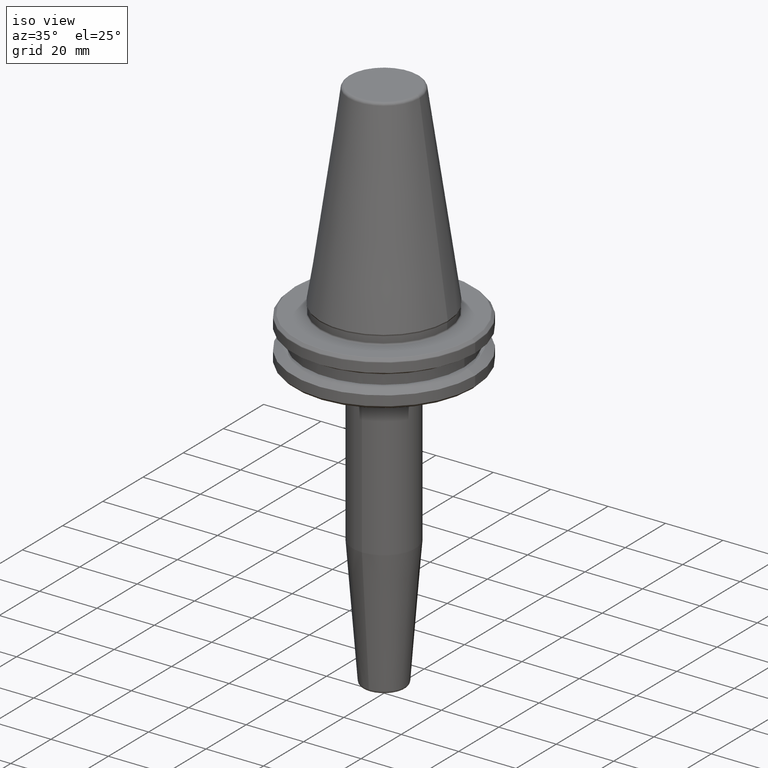
[diagram: clean part render]
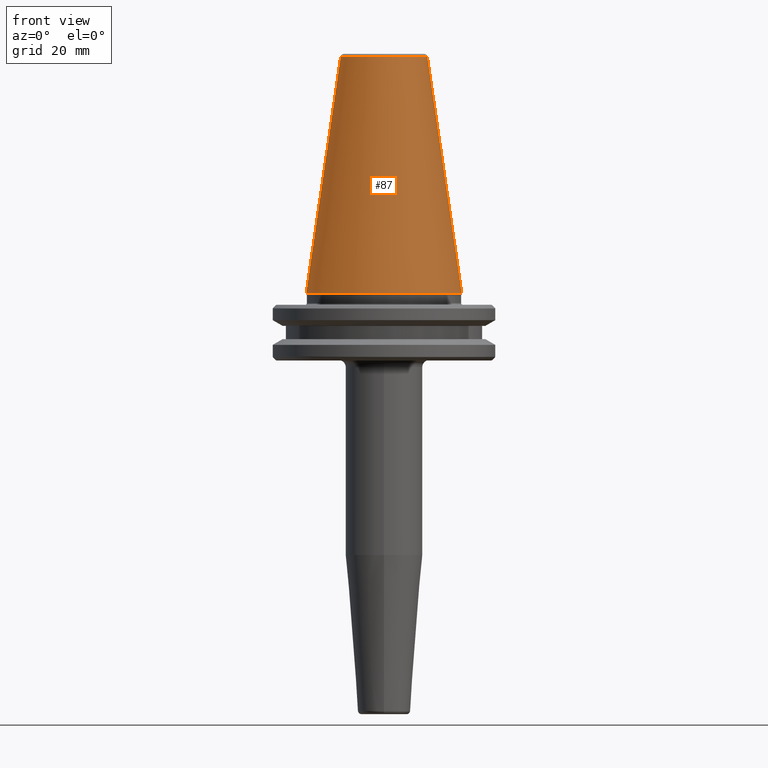
[diagram: tour spotlight — one face highlighted and labeled with its STEP entity id]
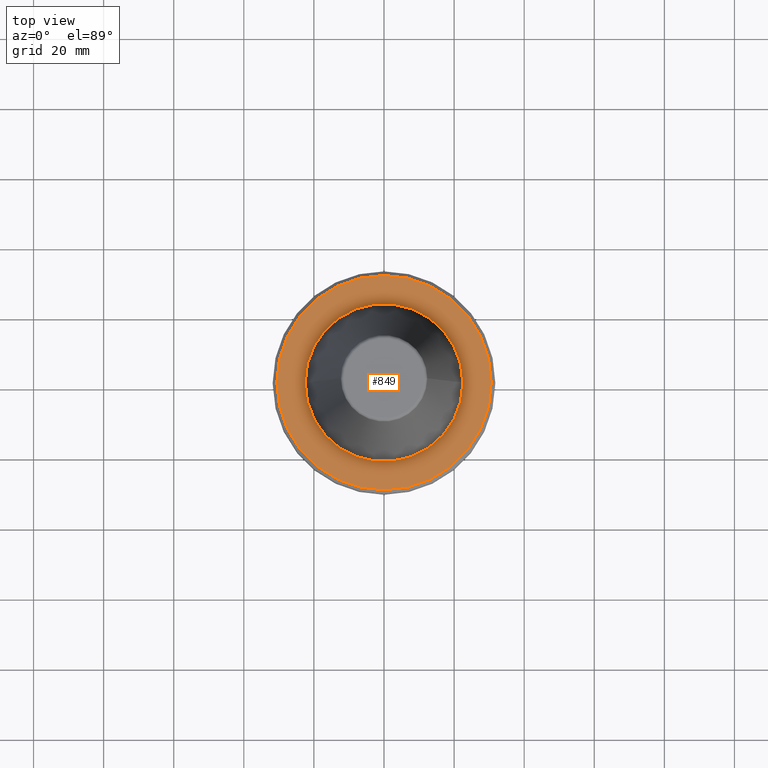
[diagram: tour spotlight — one face highlighted and labeled with its STEP entity id]
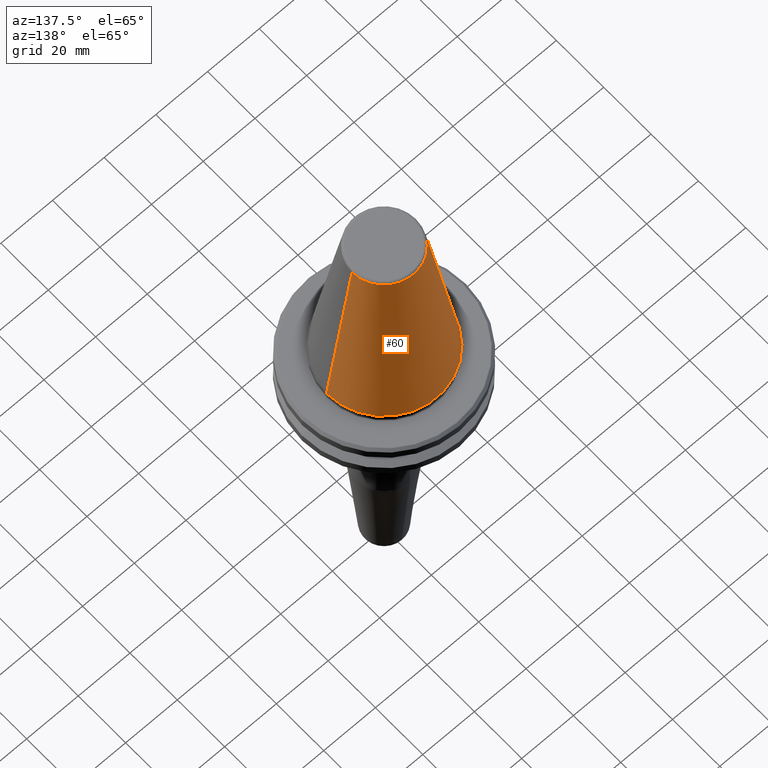
[diagram: tour spotlight — one face highlighted and labeled with its STEP entity id]
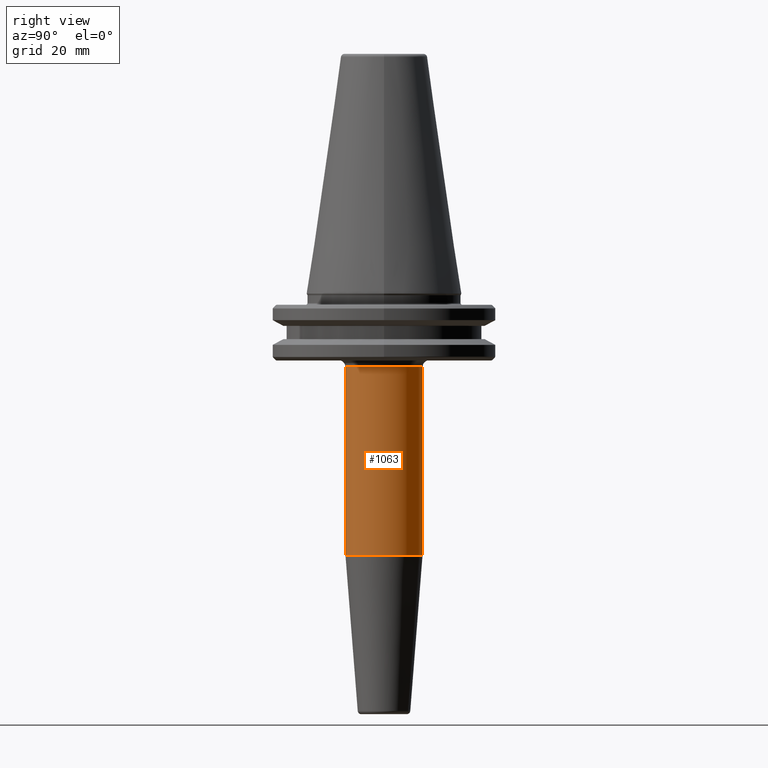
[diagram: tour spotlight — one face highlighted and labeled with its STEP entity id]
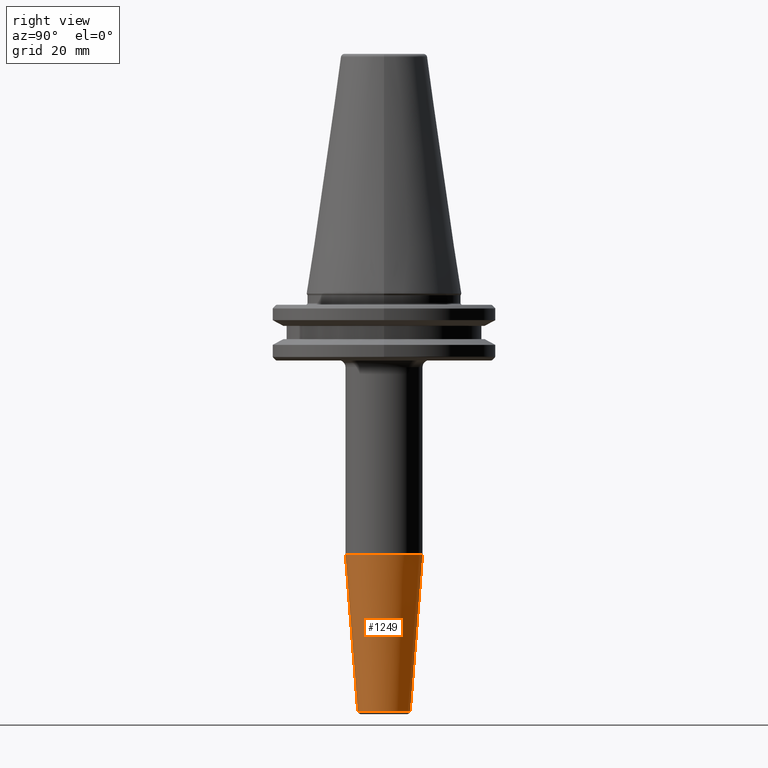
[diagram: tour spotlight — one face highlighted and labeled with its STEP entity id]
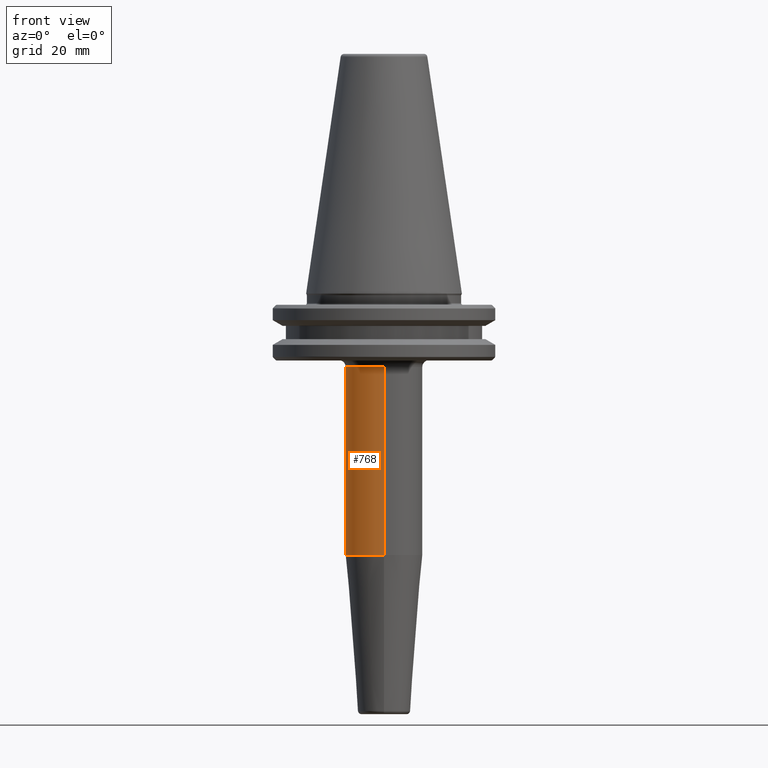
[diagram: tour spotlight — one face highlighted and labeled with its STEP entity id]
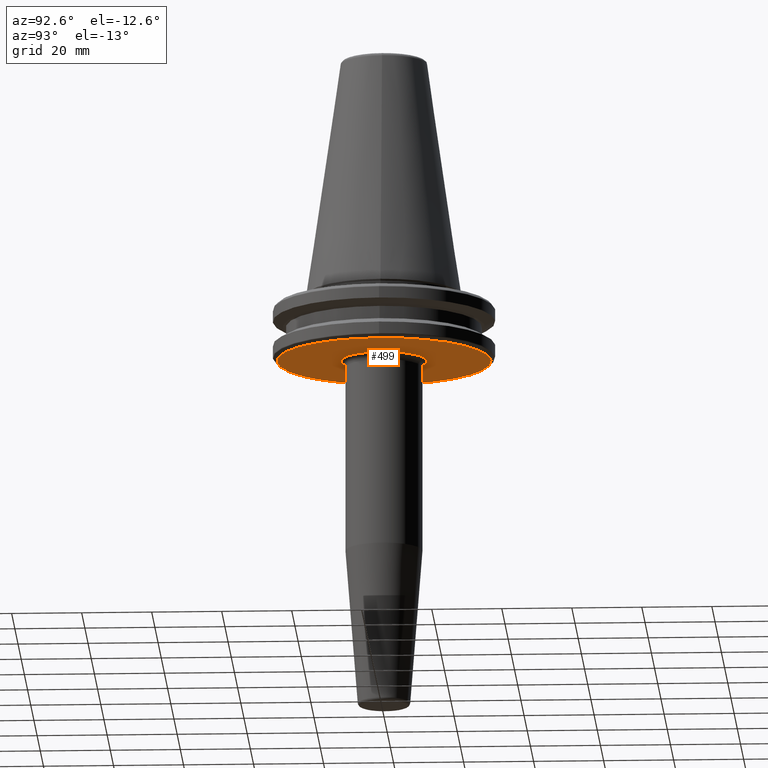
[diagram: tour spotlight — one face highlighted and labeled with its STEP entity id]
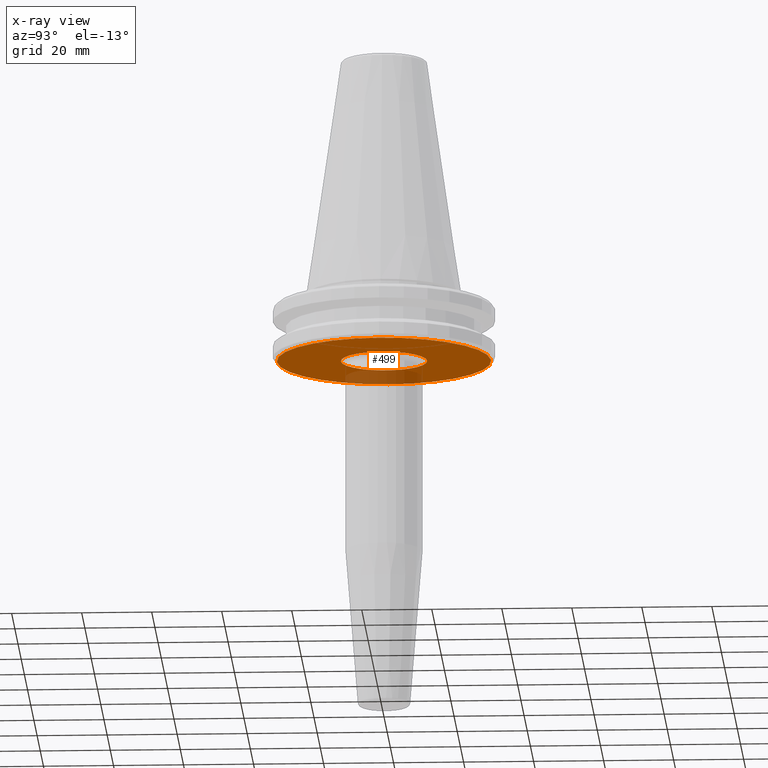
[diagram: x-ray of the same camera — body ghosted, this tour face saturated]
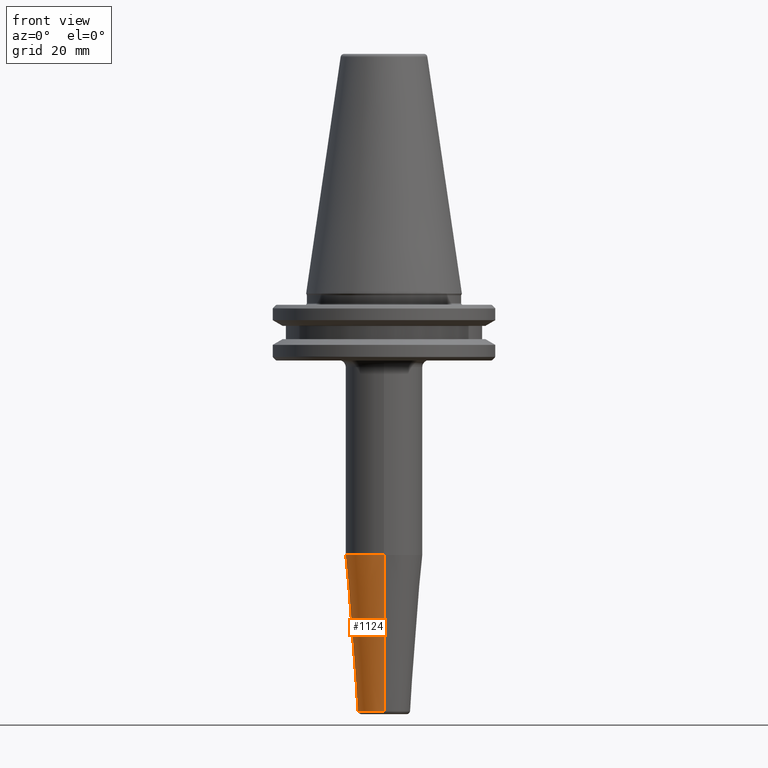
[diagram: tour spotlight — one face highlighted and labeled with its STEP entity id]
A machine part: a face-by-face anatomy tour. The part has 46 B-rep faces; the first image is the clean iso view, then the 8 largest visible faces are spotlighted one at a time (largest first), each with its STEP entity span.

Face 1 — front view, entity #87. In plain terms, the highlighted conical surface has half-angle 8.297 deg.
Definition (entity closure, byte-faithful):
#6 = VECTOR ( 'NONE', #970, 1000.000000000000000 ) ;
#9 = EDGE_CURVE ( 'NONE', #893, #999, #169, .T. ) ;
#43 = AXIS2_PLACEMENT_3D ( 'NONE', #516, #780, #862 ) ;
#85 = DIRECTION ( 'NONE',  ( -0.0000000000000000000, -0.0000000000000000000, 1.000000000000000000 ) ) ;
#87 = ADVANCED_FACE ( 'NONE', ( #599 ), #307, .T. ) ;
#121 = VERTEX_POINT ( 'NONE', #508 ) ;
#169 = LINE ( 'NONE', #389, #1164 ) ;
#181 = DIRECTION ( 'NONE',  ( -0.1443082272673071000, 0.0000000000000000000, -0.9895327864921743500 ) ) ;
#297 = CARTESIAN_POINT ( 'NONE',  ( 12.37469537611110800, 1.515463108277802100E-015, 67.54430822726729400 ) ) ;
#307 = CONICAL_SURFACE ( 'NONE', #43, 12.37469537611110800, 0.1448138465474191100 ) ;
#359 = CARTESIAN_POINT ( 'NONE',  ( -22.22500000000000500, 2.721777511104993200E-015, 0.0000000000000000000 ) ) ;
#389 = CARTESIAN_POINT ( 'NONE',  ( -12.37469537611110800, 0.0000000000000000000, 67.54430822726729400 ) ) ;
#411 = ORIENTED_EDGE ( 'NONE', *, *, #1035, .T. ) ;
#494 = ORIENTED_EDGE ( 'NONE', *, *, #925, .F. ) ;
#508 = CARTESIAN_POINT ( 'NONE',  ( 22.22500000000000500, 0.0000000000000000000, 0.0000000000000000000 ) ) ;
#516 = CARTESIAN_POINT ( 'NONE',  ( 0.0000000000000000000, 0.0000000000000000000, 67.54430822726729400 ) ) ;
#548 = CARTESIAN_POINT ( 'NONE',  ( 0.0000000000000000000, 0.0000000000000000000, 67.54430822726729400 ) ) ;
#599 = FACE_OUTER_BOUND ( 'NONE', #670, .T. ) ;
#624 = ORIENTED_EDGE ( 'NONE', *, *, #1156, .F. ) ;
#636 = DIRECTION ( 'NONE',  ( 1.000000000000000000, 0.0000000000000000000, 0.0000000000000000000 ) ) ;
#659 = CARTESIAN_POINT ( 'NONE',  ( 0.0000000000000000000, 0.0000000000000000000, 0.0000000000000000000 ) ) ;
#670 = EDGE_LOOP ( 'NONE', ( #624, #494, #1125, #411 ) ) ;
#732 = VERTEX_POINT ( 'NONE', #1033 ) ;
#759 = DIRECTION ( 'NONE',  ( 1.000000000000000000, 0.0000000000000000000, 0.0000000000000000000 ) ) ;
#780 = DIRECTION ( 'NONE',  ( 0.0000000000000000000, 0.0000000000000000000, -1.000000000000000000 ) ) ;
#862 = DIRECTION ( 'NONE',  ( -1.000000000000000000, 0.0000000000000000000, 0.0000000000000000000 ) ) ;
#893 = VERTEX_POINT ( 'NONE', #1013 ) ;
#925 = EDGE_CURVE ( 'NONE', #893, #732, #1231, .T. ) ;
#970 = DIRECTION ( 'NONE',  ( 0.1443082272673071000, 1.767266086135364600E-017, -0.9895327864921743500 ) ) ;
#973 = AXIS2_PLACEMENT_3D ( 'NONE', #548, #1216, #636 ) ;
#999 = VERTEX_POINT ( 'NONE', #359 ) ;
#1013 = CARTESIAN_POINT ( 'NONE',  ( -12.37469537611110800, 0.0000000000000000000, 67.54430822726729400 ) ) ;
#1024 = AXIS2_PLACEMENT_3D ( 'NONE', #659, #85, #759 ) ;
#1033 = CARTESIAN_POINT ( 'NONE',  ( 12.37469537611110800, 2.118620309691397700E-015, 67.54430822726729400 ) ) ;
#1035 = EDGE_CURVE ( 'NONE', #999, #121, #1197, .T. ) ;
#1064 = LINE ( 'NONE', #297, #6 ) ;
#1125 = ORIENTED_EDGE ( 'NONE', *, *, #9, .T. ) ;
#1156 = EDGE_CURVE ( 'NONE', #732, #121, #1064, .T. ) ;
#1164 = VECTOR ( 'NONE', #181, 1000.000000000000000 ) ;
#1197 = CIRCLE ( 'NONE', #1024, 22.22500000000000500 ) ;
#1216 = DIRECTION ( 'NONE',  ( -0.0000000000000000000, -0.0000000000000000000, 1.000000000000000000 ) ) ;
#1231 = CIRCLE ( 'NONE', #973, 12.37469537611110800 ) ;

Face 2 — top view, entity #849. In plain terms, the highlighted planar face has unit normal (0, -0, 1).
Definition (entity closure, byte-faithful):
#10 = CARTESIAN_POINT ( 'NONE',  ( 0.0000000000000000000, 0.0000000000000000000, -3.199999999999994400 ) ) ;
#42 = EDGE_CURVE ( 'NONE', #835, #778, #896, .T. ) ;
#45 = PLANE ( 'NONE',  #856 ) ;
#122 = AXIS2_PLACEMENT_3D ( 'NONE', #10, #187, #957 ) ;
#139 = CARTESIAN_POINT ( 'NONE',  ( 22.50000000000000000, 0.0000000000000000000, -3.199999999999996600 ) ) ;
#165 = DIRECTION ( 'NONE',  ( 1.000000000000000000, 0.0000000000000000000, 0.0000000000000000000 ) ) ;
#187 = DIRECTION ( 'NONE',  ( -0.0000000000000000000, -0.0000000000000000000, 1.000000000000000000 ) ) ;
#211 = DIRECTION ( 'NONE',  ( 1.000000000000000000, 0.0000000000000000000, 0.0000000000000000000 ) ) ;
#226 = CIRCLE ( 'NONE', #752, 22.50000000000000000 ) ;
#227 = FACE_BOUND ( 'NONE', #475, .T. ) ;
#267 = DIRECTION ( 'NONE',  ( -0.0000000000000000000, -0.0000000000000000000, 1.000000000000000000 ) ) ;
#274 = EDGE_CURVE ( 'NONE', #283, #657, #387, .T. ) ;
#283 = VERTEX_POINT ( 'NONE', #879 ) ;
#308 = CARTESIAN_POINT ( 'NONE',  ( 0.0000000000000000000, 0.0000000000000000000, -3.199999999999994400 ) ) ;
#387 = CIRCLE ( 'NONE', #431, 30.58431457505076200 ) ;
#401 = EDGE_LOOP ( 'NONE', ( #457, #425 ) ) ;
#419 = CARTESIAN_POINT ( 'NONE',  ( 0.0000000000000000000, 0.0000000000000000000, -3.199999999999994400 ) ) ;
#425 = ORIENTED_EDGE ( 'NONE', *, *, #560, .T. ) ;
#431 = AXIS2_PLACEMENT_3D ( 'NONE', #308, #786, #211 ) ;
#444 = CARTESIAN_POINT ( 'NONE',  ( -22.50000000000000000, 2.755455298081544800E-015, -3.199999999999996600 ) ) ;
#457 = ORIENTED_EDGE ( 'NONE', *, *, #274, .T. ) ;
#475 = EDGE_LOOP ( 'NONE', ( #993, #865 ) ) ;
#482 = EDGE_CURVE ( 'NONE', #778, #835, #226, .T. ) ;
#501 = FACE_OUTER_BOUND ( 'NONE', #401, .T. ) ;
#521 = DIRECTION ( 'NONE',  ( -0.0000000000000000000, -0.0000000000000000000, 1.000000000000000000 ) ) ;
#560 = EDGE_CURVE ( 'NONE', #657, #283, #1011, .T. ) ;
#609 = AXIS2_PLACEMENT_3D ( 'NONE', #1229, #267, #165 ) ;
#633 = DIRECTION ( 'NONE',  ( 1.000000000000000000, 0.0000000000000000000, 0.0000000000000000000 ) ) ;
#657 = VERTEX_POINT ( 'NONE', #1021 ) ;
#752 = AXIS2_PLACEMENT_3D ( 'NONE', #419, #521, #886 ) ;
#778 = VERTEX_POINT ( 'NONE', #139 ) ;
#786 = DIRECTION ( 'NONE',  ( -0.0000000000000000000, -0.0000000000000000000, 1.000000000000000000 ) ) ;
#835 = VERTEX_POINT ( 'NONE', #444 ) ;
#849 = ADVANCED_FACE ( 'NONE', ( #501, #227 ), #45, .T. ) ;
#856 = AXIS2_PLACEMENT_3D ( 'NONE', #1110, #1209, #633 ) ;
#865 = ORIENTED_EDGE ( 'NONE', *, *, #42, .F. ) ;
#879 = CARTESIAN_POINT ( 'NONE',  ( 30.58431457505076200, 0.0000000000000000000, -3.199999999999994400 ) ) ;
#886 = DIRECTION ( 'NONE',  ( 1.000000000000000000, 0.0000000000000000000, 0.0000000000000000000 ) ) ;
#896 = CIRCLE ( 'NONE', #122, 22.50000000000000000 ) ;
#957 = DIRECTION ( 'NONE',  ( 1.000000000000000000, 0.0000000000000000000, 0.0000000000000000000 ) ) ;
#993 = ORIENTED_EDGE ( 'NONE', *, *, #482, .F. ) ;
#1011 = CIRCLE ( 'NONE', #609, 30.58431457505076200 ) ;
#1021 = CARTESIAN_POINT ( 'NONE',  ( -30.58431457505076200, 3.762817415969875600E-015, -3.199999999999994400 ) ) ;
#1110 = CARTESIAN_POINT ( 'NONE',  ( 0.0000000000000000000, 0.0000000000000000000, -3.200000000000000200 ) ) ;
#1209 = DIRECTION ( 'NONE',  ( 0.0000000000000000000, -0.0000000000000000000, 1.000000000000000000 ) ) ;
#1229 = CARTESIAN_POINT ( 'NONE',  ( 0.0000000000000000000, 0.0000000000000000000, -3.199999999999994400 ) ) ;

Face 3 — auxiliary view, entity #60. In plain terms, the highlighted conical surface has half-angle 8.297 deg.
Definition (entity closure, byte-faithful):
#6 = VECTOR ( 'NONE', #970, 1000.000000000000000 ) ;
#9 = EDGE_CURVE ( 'NONE', #893, #999, #169, .T. ) ;
#25 = EDGE_CURVE ( 'NONE', #121, #999, #432, .T. ) ;
#60 = ADVANCED_FACE ( 'NONE', ( #135 ), #841, .T. ) ;
#94 = AXIS2_PLACEMENT_3D ( 'NONE', #679, #278, #199 ) ;
#121 = VERTEX_POINT ( 'NONE', #508 ) ;
#129 = AXIS2_PLACEMENT_3D ( 'NONE', #496, #1135, #1056 ) ;
#135 = FACE_OUTER_BOUND ( 'NONE', #361, .T. ) ;
#169 = LINE ( 'NONE', #389, #1164 ) ;
#181 = DIRECTION ( 'NONE',  ( -0.1443082272673071000, 0.0000000000000000000, -0.9895327864921743500 ) ) ;
#199 = DIRECTION ( 'NONE',  ( -1.000000000000000000, 0.0000000000000000000, 0.0000000000000000000 ) ) ;
#223 = ORIENTED_EDGE ( 'NONE', *, *, #1200, .F. ) ;
#263 = CARTESIAN_POINT ( 'NONE',  ( 0.0000000000000000000, 0.0000000000000000000, 67.54430822726729400 ) ) ;
#278 = DIRECTION ( 'NONE',  ( 0.0000000000000000000, 0.0000000000000000000, -1.000000000000000000 ) ) ;
#297 = CARTESIAN_POINT ( 'NONE',  ( 12.37469537611110800, 1.515463108277802100E-015, 67.54430822726729400 ) ) ;
#359 = CARTESIAN_POINT ( 'NONE',  ( -22.22500000000000500, 2.721777511104993200E-015, 0.0000000000000000000 ) ) ;
#361 = EDGE_LOOP ( 'NONE', ( #223, #506, #774, #991 ) ) ;
#369 = DIRECTION ( 'NONE',  ( 1.000000000000000000, 0.0000000000000000000, 0.0000000000000000000 ) ) ;
#389 = CARTESIAN_POINT ( 'NONE',  ( -12.37469537611110800, 0.0000000000000000000, 67.54430822726729400 ) ) ;
#432 = CIRCLE ( 'NONE', #129, 22.22500000000000500 ) ;
#496 = CARTESIAN_POINT ( 'NONE',  ( 0.0000000000000000000, 0.0000000000000000000, 0.0000000000000000000 ) ) ;
#506 = ORIENTED_EDGE ( 'NONE', *, *, #1156, .T. ) ;
#508 = CARTESIAN_POINT ( 'NONE',  ( 22.22500000000000500, 0.0000000000000000000, 0.0000000000000000000 ) ) ;
#679 = CARTESIAN_POINT ( 'NONE',  ( 0.0000000000000000000, 0.0000000000000000000, 67.54430822726729400 ) ) ;
#732 = VERTEX_POINT ( 'NONE', #1033 ) ;
#774 = ORIENTED_EDGE ( 'NONE', *, *, #25, .T. ) ;
#841 = CONICAL_SURFACE ( 'NONE', #94, 12.37469537611110800, 0.1448138465474191100 ) ;
#893 = VERTEX_POINT ( 'NONE', #1013 ) ;
#935 = DIRECTION ( 'NONE',  ( -0.0000000000000000000, -0.0000000000000000000, 1.000000000000000000 ) ) ;
#962 = AXIS2_PLACEMENT_3D ( 'NONE', #263, #935, #369 ) ;
#970 = DIRECTION ( 'NONE',  ( 0.1443082272673071000, 1.767266086135364600E-017, -0.9895327864921743500 ) ) ;
#975 = CIRCLE ( 'NONE', #962, 12.37469537611110800 ) ;
#991 = ORIENTED_EDGE ( 'NONE', *, *, #9, .F. ) ;
#999 = VERTEX_POINT ( 'NONE', #359 ) ;
#1013 = CARTESIAN_POINT ( 'NONE',  ( -12.37469537611110800, 0.0000000000000000000, 67.54430822726729400 ) ) ;
#1033 = CARTESIAN_POINT ( 'NONE',  ( 12.37469537611110800, 2.118620309691397700E-015, 67.54430822726729400 ) ) ;
#1056 = DIRECTION ( 'NONE',  ( 1.000000000000000000, 0.0000000000000000000, 0.0000000000000000000 ) ) ;
#1064 = LINE ( 'NONE', #297, #6 ) ;
#1135 = DIRECTION ( 'NONE',  ( -0.0000000000000000000, -0.0000000000000000000, 1.000000000000000000 ) ) ;
#1156 = EDGE_CURVE ( 'NONE', #732, #121, #1064, .T. ) ;
#1164 = VECTOR ( 'NONE', #181, 1000.000000000000000 ) ;
#1200 = EDGE_CURVE ( 'NONE', #732, #893, #975, .T. ) ;

Face 4 — right view, entity #1063. In plain terms, the highlighted cylindrical surface (partial cylindrical patch) has radius 11 mm, axis along (-0, 0, -1).
Definition (entity closure, byte-faithful):
#37 = VECTOR ( 'NONE', #1154, 1000.000000000000000 ) ;
#156 = VERTEX_POINT ( 'NONE', #602 ) ;
#166 = CARTESIAN_POINT ( 'NONE',  ( 0.0000000000000000000, -11.00000000000001400, -74.60674251911153500 ) ) ;
#203 = CIRCLE ( 'NONE', #691, 11.00000000000001400 ) ;
#257 = VECTOR ( 'NONE', #1007, 1000.000000000000000 ) ;
#314 = DIRECTION ( 'NONE',  ( -0.0000000000000000000, 1.946757673717420000E-016, -1.000000000000000000 ) ) ;
#318 = VERTEX_POINT ( 'NONE', #518 ) ;
#348 = DIRECTION ( 'NONE',  ( -0.0000000000000000000, 1.946757673717420000E-016, -1.000000000000000000 ) ) ;
#414 = CARTESIAN_POINT ( 'NONE',  ( 0.0000000000000000000, -6.440995650636750700E-015, -74.60674251911153500 ) ) ;
#418 = DIRECTION ( 'NONE',  ( 0.0000000000000000000, 1.000000000000000000, 0.0000000000000000000 ) ) ;
#447 = EDGE_CURVE ( 'NONE', #1000, #156, #1026, .T. ) ;
#489 = EDGE_CURVE ( 'NONE', #156, #706, #794, .T. ) ;
#518 = CARTESIAN_POINT ( 'NONE',  ( 1.347111479062091200E-015, -11.00000000000003400, -20.98284271247461100 ) ) ;
#554 = CARTESIAN_POINT ( 'NONE',  ( 0.0000000000000000000, 10.99999999999999800, -20.98284271247460400 ) ) ;
#574 = DIRECTION ( 'NONE',  ( 0.0000000000000000000, 1.000000000000000000, 0.0000000000000000000 ) ) ;
#578 = CARTESIAN_POINT ( 'NONE',  ( 0.0000000000000000000, 2.395971582958279500E-015, -120.0000000000000000 ) ) ;
#585 = CARTESIAN_POINT ( 'NONE',  ( 1.347111479062090000E-015, -11.00000000000001100, -120.0000000000000000 ) ) ;
#602 = CARTESIAN_POINT ( 'NONE',  ( 1.347111479062089600E-015, 11.00000000000000200, -74.60674251911153500 ) ) ;
#625 = ORIENTED_EDGE ( 'NONE', *, *, #1143, .T. ) ;
#691 = AXIS2_PLACEMENT_3D ( 'NONE', #917, #348, #1017 ) ;
#705 = ORIENTED_EDGE ( 'NONE', *, *, #489, .F. ) ;
#706 = VERTEX_POINT ( 'NONE', #166 ) ;
#726 = AXIS2_PLACEMENT_3D ( 'NONE', #414, #314, #418 ) ;
#794 = CIRCLE ( 'NONE', #726, 11.00000000000000900 ) ;
#842 = FACE_OUTER_BOUND ( 'NONE', #1089, .T. ) ;
#847 = DIRECTION ( 'NONE',  ( -0.0000000000000000000, 1.946757673717420000E-016, -1.000000000000000000 ) ) ;
#850 = ORIENTED_EDGE ( 'NONE', *, *, #915, .T. ) ;
#888 = ORIENTED_EDGE ( 'NONE', *, *, #447, .F. ) ;
#915 = EDGE_CURVE ( 'NONE', #1000, #318, #203, .T. ) ;
#917 = CARTESIAN_POINT ( 'NONE',  ( 0.0000000000000000000, -1.688026949495919900E-014, -20.98284271247460700 ) ) ;
#1000 = VERTEX_POINT ( 'NONE', #554 ) ;
#1007 = DIRECTION ( 'NONE',  ( -0.0000000000000000000, 1.946757673717420000E-016, -1.000000000000000000 ) ) ;
#1012 = CARTESIAN_POINT ( 'NONE',  ( 0.0000000000000000000, 11.00000000000001200, -120.0000000000000000 ) ) ;
#1017 = DIRECTION ( 'NONE',  ( 0.0000000000000000000, 1.000000000000000000, 3.154042683594190700E-016 ) ) ;
#1026 = LINE ( 'NONE', #1012, #257 ) ;
#1063 = ADVANCED_FACE ( 'NONE', ( #842 ), #1120, .T. ) ;
#1089 = EDGE_LOOP ( 'NONE', ( #850, #625, #705, #888 ) ) ;
#1094 = LINE ( 'NONE', #585, #37 ) ;
#1120 = CYLINDRICAL_SURFACE ( 'NONE', #1225, 11.00000000000001100 ) ;
#1143 = EDGE_CURVE ( 'NONE', #318, #706, #1094, .T. ) ;
#1154 = DIRECTION ( 'NONE',  ( -0.0000000000000000000, 1.946757673717420000E-016, -1.000000000000000000 ) ) ;
#1225 = AXIS2_PLACEMENT_3D ( 'NONE', #578, #847, #574 ) ;

Face 5 — right view, entity #1249. In plain terms, the highlighted conical surface has half-angle 4.5 deg.
Definition (entity closure, byte-faithful):
#13 = DIRECTION ( 'NONE',  ( 9.608468044709102800E-018, 0.07845909572783652000, 0.9969173337331286300 ) ) ;
#75 = DIRECTION ( 'NONE',  ( 0.0000000000000000000, -1.000000000000000000, 0.0000000000000000000 ) ) ;
#156 = VERTEX_POINT ( 'NONE', #602 ) ;
#166 = CARTESIAN_POINT ( 'NONE',  ( 0.0000000000000000000, -11.00000000000001400, -74.60674251911153500 ) ) ;
#220 = AXIS2_PLACEMENT_3D ( 'NONE', #837, #1235, #75 ) ;
#288 = VECTOR ( 'NONE', #13, 1000.000000000000000 ) ;
#311 = EDGE_CURVE ( 'NONE', #804, #706, #321, .T. ) ;
#314 = DIRECTION ( 'NONE',  ( -0.0000000000000000000, 1.946757673717420000E-016, -1.000000000000000000 ) ) ;
#321 = LINE ( 'NONE', #1087, #1062 ) ;
#334 = EDGE_CURVE ( 'NONE', #1067, #156, #559, .T. ) ;
#395 = ORIENTED_EDGE ( 'NONE', *, *, #311, .F. ) ;
#414 = CARTESIAN_POINT ( 'NONE',  ( 0.0000000000000000000, -6.440995650636750700E-015, -74.60674251911153500 ) ) ;
#418 = DIRECTION ( 'NONE',  ( 0.0000000000000000000, 1.000000000000000000, 0.0000000000000000000 ) ) ;
#423 = EDGE_CURVE ( 'NONE', #1067, #804, #557, .T. ) ;
#437 = CONICAL_SURFACE ( 'NONE', #220, 7.499999999999997300, 0.07853981633973658400 ) ;
#438 = EDGE_LOOP ( 'NONE', ( #1257, #1126, #881, #395 ) ) ;
#489 = EDGE_CURVE ( 'NONE', #156, #706, #794, .T. ) ;
#514 = CARTESIAN_POINT ( 'NONE',  ( 9.184850993605146000E-016, 7.500000000000000000, -119.0784590957278200 ) ) ;
#557 = CIRCLE ( 'NONE', #843, 7.499999999999997300 ) ;
#559 = LINE ( 'NONE', #514, #288 ) ;
#602 = CARTESIAN_POINT ( 'NONE',  ( 1.347111479062089600E-015, 11.00000000000000200, -74.60674251911153500 ) ) ;
#662 = CARTESIAN_POINT ( 'NONE',  ( 0.0000000000000000000, 7.500000000000000000, -119.0784590957278200 ) ) ;
#706 = VERTEX_POINT ( 'NONE', #166 ) ;
#716 = CARTESIAN_POINT ( 'NONE',  ( 9.184850993605146000E-016, -7.499999999999994700, -119.0784590957278200 ) ) ;
#719 = DIRECTION ( 'NONE',  ( 0.0000000000000000000, 1.000000000000000000, 0.0000000000000000000 ) ) ;
#726 = AXIS2_PLACEMENT_3D ( 'NONE', #414, #314, #418 ) ;
#794 = CIRCLE ( 'NONE', #726, 11.00000000000000900 ) ;
#804 = VERTEX_POINT ( 'NONE', #716 ) ;
#837 = CARTESIAN_POINT ( 'NONE',  ( 0.0000000000000000000, 2.216569900254645900E-015, -119.0784590957278200 ) ) ;
#843 = AXIS2_PLACEMENT_3D ( 'NONE', #907, #1106, #719 ) ;
#881 = ORIENTED_EDGE ( 'NONE', *, *, #489, .T. ) ;
#907 = CARTESIAN_POINT ( 'NONE',  ( 0.0000000000000000000, 2.216569900254645900E-015, -119.0784590957278200 ) ) ;
#998 = FACE_OUTER_BOUND ( 'NONE', #438, .T. ) ;
#1062 = VECTOR ( 'NONE', #1177, 1000.000000000000000 ) ;
#1067 = VERTEX_POINT ( 'NONE', #662 ) ;
#1087 = CARTESIAN_POINT ( 'NONE',  ( 0.0000000000000000000, -7.499999999999994700, -119.0784590957278200 ) ) ;
#1106 = DIRECTION ( 'NONE',  ( -0.0000000000000000000, 1.946757673717420000E-016, -1.000000000000000000 ) ) ;
#1126 = ORIENTED_EDGE ( 'NONE', *, *, #334, .T. ) ;
#1177 = DIRECTION ( 'NONE',  ( 0.0000000000000000000, -0.07845909572783692200, 0.9969173337331286300 ) ) ;
#1235 = DIRECTION ( 'NONE',  ( 0.0000000000000000000, -1.946757673717420000E-016, 1.000000000000000000 ) ) ;
#1249 = ADVANCED_FACE ( 'NONE', ( #998 ), #437, .T. ) ;
#1257 = ORIENTED_EDGE ( 'NONE', *, *, #423, .F. ) ;

Face 6 — front view, entity #768. In plain terms, the highlighted cylindrical surface (partial cylindrical patch) has radius 11 mm, axis along (-0, 0, -1).
Definition (entity closure, byte-faithful):
#37 = VECTOR ( 'NONE', #1154, 1000.000000000000000 ) ;
#46 = DIRECTION ( 'NONE',  ( -0.0000000000000000000, 1.946757673717420000E-016, -1.000000000000000000 ) ) ;
#58 = FACE_OUTER_BOUND ( 'NONE', #860, .T. ) ;
#89 = CIRCLE ( 'NONE', #164, 11.00000000000000900 ) ;
#156 = VERTEX_POINT ( 'NONE', #602 ) ;
#164 = AXIS2_PLACEMENT_3D ( 'NONE', #469, #1128, #566 ) ;
#166 = CARTESIAN_POINT ( 'NONE',  ( 0.0000000000000000000, -11.00000000000001400, -74.60674251911153500 ) ) ;
#257 = VECTOR ( 'NONE', #1007, 1000.000000000000000 ) ;
#299 = ORIENTED_EDGE ( 'NONE', *, *, #709, .F. ) ;
#305 = AXIS2_PLACEMENT_3D ( 'NONE', #436, #1103, #1201 ) ;
#318 = VERTEX_POINT ( 'NONE', #518 ) ;
#343 = EDGE_CURVE ( 'NONE', #318, #1000, #356, .T. ) ;
#356 = CIRCLE ( 'NONE', #399, 11.00000000000001400 ) ;
#399 = AXIS2_PLACEMENT_3D ( 'NONE', #1198, #46, #1010 ) ;
#436 = CARTESIAN_POINT ( 'NONE',  ( 0.0000000000000000000, 2.395971582958279500E-015, -120.0000000000000000 ) ) ;
#447 = EDGE_CURVE ( 'NONE', #1000, #156, #1026, .T. ) ;
#469 = CARTESIAN_POINT ( 'NONE',  ( 0.0000000000000000000, -6.440995650636750700E-015, -74.60674251911153500 ) ) ;
#518 = CARTESIAN_POINT ( 'NONE',  ( 1.347111479062091200E-015, -11.00000000000003400, -20.98284271247461100 ) ) ;
#527 = CYLINDRICAL_SURFACE ( 'NONE', #305, 11.00000000000001100 ) ;
#554 = CARTESIAN_POINT ( 'NONE',  ( 0.0000000000000000000, 10.99999999999999800, -20.98284271247460400 ) ) ;
#566 = DIRECTION ( 'NONE',  ( 0.0000000000000000000, 1.000000000000000000, 0.0000000000000000000 ) ) ;
#585 = CARTESIAN_POINT ( 'NONE',  ( 1.347111479062090000E-015, -11.00000000000001100, -120.0000000000000000 ) ) ;
#602 = CARTESIAN_POINT ( 'NONE',  ( 1.347111479062089600E-015, 11.00000000000000200, -74.60674251911153500 ) ) ;
#706 = VERTEX_POINT ( 'NONE', #166 ) ;
#709 = EDGE_CURVE ( 'NONE', #706, #156, #89, .T. ) ;
#768 = ADVANCED_FACE ( 'NONE', ( #58 ), #527, .T. ) ;
#860 = EDGE_LOOP ( 'NONE', ( #1161, #1037, #984, #299 ) ) ;
#984 = ORIENTED_EDGE ( 'NONE', *, *, #447, .T. ) ;
#1000 = VERTEX_POINT ( 'NONE', #554 ) ;
#1007 = DIRECTION ( 'NONE',  ( -0.0000000000000000000, 1.946757673717420000E-016, -1.000000000000000000 ) ) ;
#1010 = DIRECTION ( 'NONE',  ( 0.0000000000000000000, 1.000000000000000000, 3.154042683594190700E-016 ) ) ;
#1012 = CARTESIAN_POINT ( 'NONE',  ( 0.0000000000000000000, 11.00000000000001200, -120.0000000000000000 ) ) ;
#1026 = LINE ( 'NONE', #1012, #257 ) ;
#1037 = ORIENTED_EDGE ( 'NONE', *, *, #343, .T. ) ;
#1094 = LINE ( 'NONE', #585, #37 ) ;
#1103 = DIRECTION ( 'NONE',  ( -0.0000000000000000000, 1.946757673717420000E-016, -1.000000000000000000 ) ) ;
#1128 = DIRECTION ( 'NONE',  ( -0.0000000000000000000, 1.946757673717420000E-016, -1.000000000000000000 ) ) ;
#1143 = EDGE_CURVE ( 'NONE', #318, #706, #1094, .T. ) ;
#1154 = DIRECTION ( 'NONE',  ( -0.0000000000000000000, 1.946757673717420000E-016, -1.000000000000000000 ) ) ;
#1161 = ORIENTED_EDGE ( 'NONE', *, *, #1143, .F. ) ;
#1198 = CARTESIAN_POINT ( 'NONE',  ( 0.0000000000000000000, -1.688026949495919900E-014, -20.98284271247460700 ) ) ;
#1201 = DIRECTION ( 'NONE',  ( 0.0000000000000000000, 1.000000000000000000, 0.0000000000000000000 ) ) ;

Face 7 — auxiliary view, entity #499. An x-ray twin of the same camera follows (body ghosted, this face saturated) — the face is partly hidden behind the body. In plain terms, the highlighted planar face has unit normal (0, 0, -1).
Definition (entity closure, byte-faithful):
#48 = CARTESIAN_POINT ( 'NONE',  ( 30.58431457505076500, 0.0000000000000000000, -19.10000000000000500 ) ) ;
#66 = EDGE_LOOP ( 'NONE', ( #924, #456 ) ) ;
#67 = DIRECTION ( 'NONE',  ( 1.000000000000000000, 0.0000000000000000000, 0.0000000000000000000 ) ) ;
#83 = AXIS2_PLACEMENT_3D ( 'NONE', #1226, #645, #67 ) ;
#99 = ORIENTED_EDGE ( 'NONE', *, *, #687, .F. ) ;
#119 = CARTESIAN_POINT ( 'NONE',  ( 0.0000000000000000000, 2.166680460328873200E-015, -19.10000000000000500 ) ) ;
#202 = CIRCLE ( 'NONE', #639, 12.32553478956935000 ) ;
#249 = VERTEX_POINT ( 'NONE', #980 ) ;
#379 = EDGE_CURVE ( 'NONE', #858, #249, #1090, .T. ) ;
#445 = CARTESIAN_POINT ( 'NONE',  ( 0.0000000000000000000, -1.734723475976807100E-014, -19.10000000000000500 ) ) ;
#456 = ORIENTED_EDGE ( 'NONE', *, *, #600, .F. ) ;
#484 = CIRCLE ( 'NONE', #880, 12.32553478956935000 ) ;
#499 = ADVANCED_FACE ( 'NONE', ( #996, #683 ), #606, .T. ) ;
#542 = DIRECTION ( 'NONE',  ( 1.000000000000000000, 0.0000000000000000000, 0.0000000000000000000 ) ) ;
#550 = EDGE_CURVE ( 'NONE', #590, #1189, #202, .T. ) ;
#590 = VERTEX_POINT ( 'NONE', #1038 ) ;
#600 = EDGE_CURVE ( 'NONE', #1189, #590, #484, .T. ) ;
#606 = PLANE ( 'NONE',  #682 ) ;
#639 = AXIS2_PLACEMENT_3D ( 'NONE', #811, #1207, #911 ) ;
#645 = DIRECTION ( 'NONE',  ( -0.0000000000000000000, -0.0000000000000000000, 1.000000000000000000 ) ) ;
#682 = AXIS2_PLACEMENT_3D ( 'NONE', #119, #985, #1086 ) ;
#683 = FACE_OUTER_BOUND ( 'NONE', #755, .T. ) ;
#687 = EDGE_CURVE ( 'NONE', #249, #858, #1118, .T. ) ;
#755 = EDGE_LOOP ( 'NONE', ( #1222, #99 ) ) ;
#777 = DIRECTION ( 'NONE',  ( 1.000000000000000000, 0.0000000000000000000, 0.0000000000000000000 ) ) ;
#811 = CARTESIAN_POINT ( 'NONE',  ( 0.0000000000000000000, -1.734723475976807100E-014, -19.10000000000000500 ) ) ;
#858 = VERTEX_POINT ( 'NONE', #48 ) ;
#880 = AXIS2_PLACEMENT_3D ( 'NONE', #445, #1111, #542 ) ;
#911 = DIRECTION ( 'NONE',  ( 1.000000000000000000, 0.0000000000000000000, 0.0000000000000000000 ) ) ;
#916 = AXIS2_PLACEMENT_3D ( 'NONE', #1068, #1163, #777 ) ;
#924 = ORIENTED_EDGE ( 'NONE', *, *, #550, .F. ) ;
#980 = CARTESIAN_POINT ( 'NONE',  ( -30.58431457505076500, 3.762817415969875600E-015, -19.10000000000000500 ) ) ;
#985 = DIRECTION ( 'NONE',  ( 0.0000000000000000000, 0.0000000000000000000, -1.000000000000000000 ) ) ;
#996 = FACE_BOUND ( 'NONE', #66, .T. ) ;
#1038 = CARTESIAN_POINT ( 'NONE',  ( 0.0000000000000000000, 12.32553478956932800, -19.10000000000000500 ) ) ;
#1068 = CARTESIAN_POINT ( 'NONE',  ( 0.0000000000000000000, 0.0000000000000000000, -19.10000000000000500 ) ) ;
#1071 = CARTESIAN_POINT ( 'NONE',  ( 1.509442672782545800E-015, -12.32553478956937300, -19.10000000000000500 ) ) ;
#1086 = DIRECTION ( 'NONE',  ( -1.000000000000000000, 0.0000000000000000000, -0.0000000000000000000 ) ) ;
#1090 = CIRCLE ( 'NONE', #916, 30.58431457505076500 ) ;
#1111 = DIRECTION ( 'NONE',  ( 0.0000000000000000000, 0.0000000000000000000, -1.000000000000000000 ) ) ;
#1118 = CIRCLE ( 'NONE', #83, 30.58431457505076500 ) ;
#1163 = DIRECTION ( 'NONE',  ( -0.0000000000000000000, -0.0000000000000000000, 1.000000000000000000 ) ) ;
#1189 = VERTEX_POINT ( 'NONE', #1071 ) ;
#1207 = DIRECTION ( 'NONE',  ( 0.0000000000000000000, 0.0000000000000000000, -1.000000000000000000 ) ) ;
#1222 = ORIENTED_EDGE ( 'NONE', *, *, #379, .F. ) ;
#1226 = CARTESIAN_POINT ( 'NONE',  ( 0.0000000000000000000, 0.0000000000000000000, -19.10000000000000500 ) ) ;

Face 8 — front view, entity #1124. In plain terms, the highlighted conical surface has half-angle 4.5 deg.
Definition (entity closure, byte-faithful):
#13 = DIRECTION ( 'NONE',  ( 9.608468044709102800E-018, 0.07845909572783652000, 0.9969173337331286300 ) ) ;
#64 = CONICAL_SURFACE ( 'NONE', #820, 7.499999999999997300, 0.07853981633973658400 ) ;
#89 = CIRCLE ( 'NONE', #164, 11.00000000000000900 ) ;
#107 = CARTESIAN_POINT ( 'NONE',  ( 0.0000000000000000000, 2.216569900254645900E-015, -119.0784590957278200 ) ) ;
#156 = VERTEX_POINT ( 'NONE', #602 ) ;
#164 = AXIS2_PLACEMENT_3D ( 'NONE', #469, #1128, #566 ) ;
#166 = CARTESIAN_POINT ( 'NONE',  ( 0.0000000000000000000, -11.00000000000001400, -74.60674251911153500 ) ) ;
#286 = CIRCLE ( 'NONE', #874, 7.499999999999997300 ) ;
#288 = VECTOR ( 'NONE', #13, 1000.000000000000000 ) ;
#311 = EDGE_CURVE ( 'NONE', #804, #706, #321, .T. ) ;
#321 = LINE ( 'NONE', #1087, #1062 ) ;
#334 = EDGE_CURVE ( 'NONE', #1067, #156, #559, .T. ) ;
#362 = ORIENTED_EDGE ( 'NONE', *, *, #311, .T. ) ;
#406 = EDGE_CURVE ( 'NONE', #804, #1067, #286, .T. ) ;
#469 = CARTESIAN_POINT ( 'NONE',  ( 0.0000000000000000000, -6.440995650636750700E-015, -74.60674251911153500 ) ) ;
#488 = DIRECTION ( 'NONE',  ( 0.0000000000000000000, -1.000000000000000000, 0.0000000000000000000 ) ) ;
#514 = CARTESIAN_POINT ( 'NONE',  ( 9.184850993605146000E-016, 7.500000000000000000, -119.0784590957278200 ) ) ;
#559 = LINE ( 'NONE', #514, #288 ) ;
#566 = DIRECTION ( 'NONE',  ( 0.0000000000000000000, 1.000000000000000000, 0.0000000000000000000 ) ) ;
#587 = ORIENTED_EDGE ( 'NONE', *, *, #406, .F. ) ;
#602 = CARTESIAN_POINT ( 'NONE',  ( 1.347111479062089600E-015, 11.00000000000000200, -74.60674251911153500 ) ) ;
#662 = CARTESIAN_POINT ( 'NONE',  ( 0.0000000000000000000, 7.500000000000000000, -119.0784590957278200 ) ) ;
#706 = VERTEX_POINT ( 'NONE', #166 ) ;
#709 = EDGE_CURVE ( 'NONE', #706, #156, #89, .T. ) ;
#716 = CARTESIAN_POINT ( 'NONE',  ( 9.184850993605146000E-016, -7.499999999999994700, -119.0784590957278200 ) ) ;
#804 = VERTEX_POINT ( 'NONE', #716 ) ;
#820 = AXIS2_PLACEMENT_3D ( 'NONE', #851, #1255, #488 ) ;
#851 = CARTESIAN_POINT ( 'NONE',  ( 0.0000000000000000000, 2.216569900254645900E-015, -119.0784590957278200 ) ) ;
#874 = AXIS2_PLACEMENT_3D ( 'NONE', #107, #1171, #974 ) ;
#974 = DIRECTION ( 'NONE',  ( 0.0000000000000000000, 1.000000000000000000, 0.0000000000000000000 ) ) ;
#1019 = EDGE_LOOP ( 'NONE', ( #1153, #587, #362, #1242 ) ) ;
#1062 = VECTOR ( 'NONE', #1177, 1000.000000000000000 ) ;
#1067 = VERTEX_POINT ( 'NONE', #662 ) ;
#1087 = CARTESIAN_POINT ( 'NONE',  ( 0.0000000000000000000, -7.499999999999994700, -119.0784590957278200 ) ) ;
#1107 = FACE_OUTER_BOUND ( 'NONE', #1019, .T. ) ;
#1124 = ADVANCED_FACE ( 'NONE', ( #1107 ), #64, .T. ) ;
#1128 = DIRECTION ( 'NONE',  ( -0.0000000000000000000, 1.946757673717420000E-016, -1.000000000000000000 ) ) ;
#1153 = ORIENTED_EDGE ( 'NONE', *, *, #334, .F. ) ;
#1171 = DIRECTION ( 'NONE',  ( -0.0000000000000000000, 1.946757673717420000E-016, -1.000000000000000000 ) ) ;
#1177 = DIRECTION ( 'NONE',  ( 0.0000000000000000000, -0.07845909572783692200, 0.9969173337331286300 ) ) ;
#1242 = ORIENTED_EDGE ( 'NONE', *, *, #709, .T. ) ;
#1255 = DIRECTION ( 'NONE',  ( 0.0000000000000000000, -1.946757673717420000E-016, 1.000000000000000000 ) ) ;